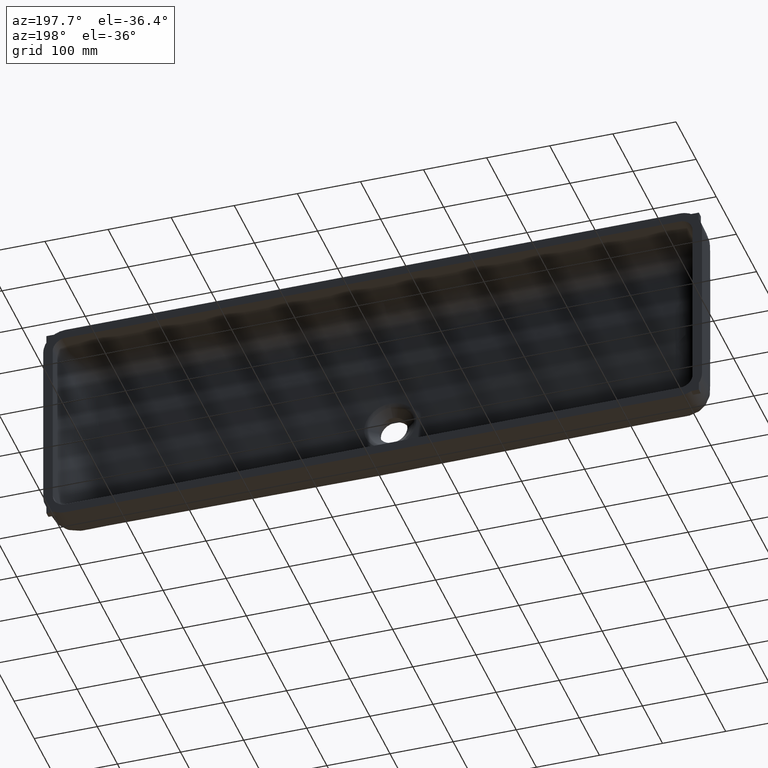
[diagram: clean part render]
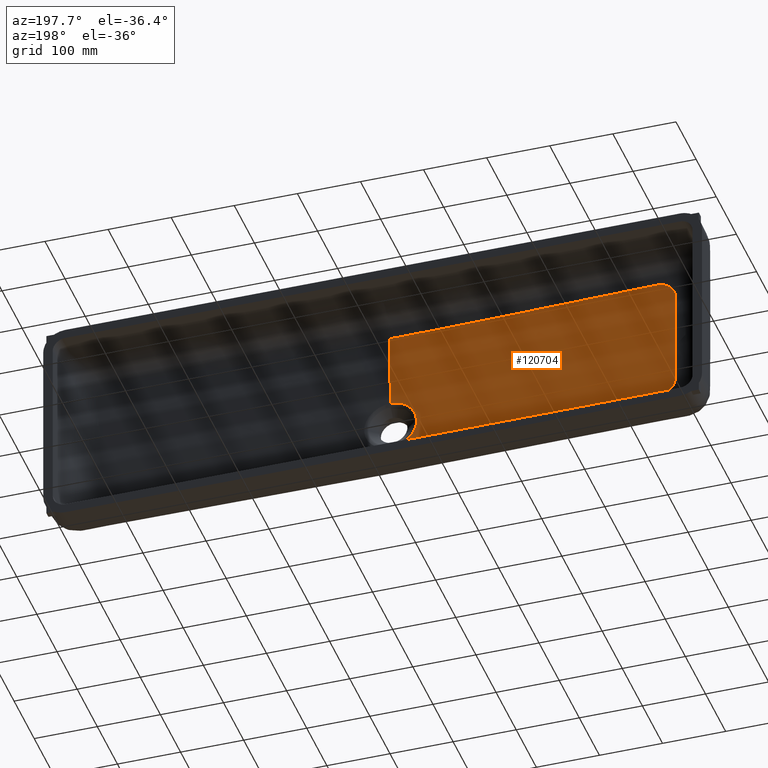
[diagram: same view with one face highlighted and labeled with its STEP entity id]
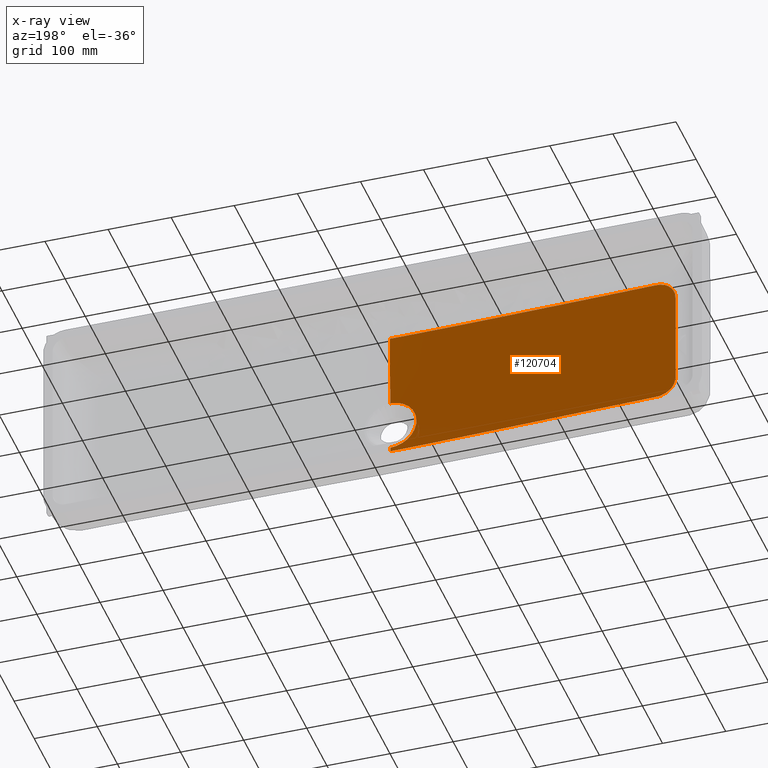
[diagram: x-ray of the same camera — body ghosted, the highlighted face saturated]
A machine part, auxiliary view. The second image highlights one B-rep face of the part: STEP entity #120704.
The next image is the same camera in x-ray: the body ghosted, the highlighted face saturated — about 0% of this face is hidden behind the body in this view.
In plain terms, the highlighted face is a freeform B-spline surface patch.
Its self-contained STEP definition (entity closure, byte-faithful):
#179 = CARTESIAN_POINT ( 'NONE',  ( 176.2024207338379500, 35.17482114246643500, 181.5264726593846100 ) ) ;
#963 = CARTESIAN_POINT ( 'NONE',  ( 164.5227834139117000, 35.47396408394478600, 183.2011361250598900 ) ) ;
#1739 = CARTESIAN_POINT ( 'NONE',  ( 149.8838825729335400, 35.82901819117439100, 194.0752245794039100 ) ) ;
#1866 = VERTEX_POINT ( 'NONE', #233815 ) ;
#2313 = CARTESIAN_POINT ( 'NONE',  ( 584.7628247678693500, 25.09141385087169600, 191.1164192531211100 ) ) ;
#2518 = CARTESIAN_POINT ( 'NONE',  ( 144.3858029873997600, 35.94624319658133500, 210.7559810717443400 ) ) ;
#3095 = CARTESIAN_POINT ( 'NONE',  ( 591.7522578783144800, 25.09141385088687000, 270.9398561180673800 ) ) ;
#3300 = CARTESIAN_POINT ( 'NONE',  ( 144.3620805054926800, 35.93721898306692000, 224.0639104135716800 ) ) ;
#4078 = CARTESIAN_POINT ( 'NONE',  ( 144.3604081195817600, 36.17001045739785100, 320.7265992561612500 ) ) ;
#4664 = CARTESIAN_POINT ( 'NONE',  ( -13.72413734284847700, 40.07586596130173000, -383.7240317683529700 ) ) ;
#4866 = CARTESIAN_POINT ( 'NONE',  ( 144.3593102158504300, 36.35749783869176400, 352.1369760297309900 ) ) ;
#5652 = CARTESIAN_POINT ( 'NONE',  ( 144.3738063945454500, 36.41973568150088200, 361.0677908512569200 ) ) ;
#6429 = CARTESIAN_POINT ( 'NONE',  ( 149.8807601732927700, 36.41178927021127300, 377.9155279742507800 ) ) ;
#6860 = CARTESIAN_POINT ( 'NONE',  ( 599.9999999999888600, 25.09141385091136600, 271.4909540696872300 ) ) ;
#7208 = CARTESIAN_POINT ( 'NONE',  ( 166.5849873833639700, 36.09877200873621200, 389.5396467287873700 ) ) ;
#7995 = CARTESIAN_POINT ( 'NONE',  ( 178.9293651524734200, 35.80553491580957400, 390.5678869772426700 ) ) ;
#8017 = VERTEX_POINT ( 'NONE', #6860 ) ;
#8783 = CARTESIAN_POINT ( 'NONE',  ( 224.1936735173692900, 34.70589829466395300, 390.5351423045095800 ) ) ;
#9571 = CARTESIAN_POINT ( 'NONE',  ( 306.0367402568567200, 32.77548315398624400, 390.5350279089851700 ) ) ;
#10353 = CARTESIAN_POINT ( 'NONE',  ( 368.1443505445549800, 31.38932625495923600, 390.5349879353515800 ) ) ;
#10939 = CARTESIAN_POINT ( 'NONE',  ( 600.0000001368580300, 25.27360374821627100, 181.5514945624263100 ) ) ;
#10999 = VERTEX_POINT ( 'NONE', #63508 ) ;
#11141 = CARTESIAN_POINT ( 'NONE',  ( 432.4241675808659700, 30.08064658210627200, 390.5322515717650200 ) ) ;
#11731 = CARTESIAN_POINT ( 'NONE',  ( 566.8307485983517600, 25.54126204137188700, 181.5528464619535800 ) ) ;
#11938 = CARTESIAN_POINT ( 'NONE',  ( 527.9380004786353300, 28.61193222349244900, 390.5355148227095000 ) ) ;
#12517 = CARTESIAN_POINT ( 'NONE',  ( 524.7622565993469800, 26.34812764394451200, 181.5516476848054300 ) ) ;
#13301 = CARTESIAN_POINT ( 'NONE',  ( 481.2749890947519000, 27.36261973391546900, 181.5525575936573300 ) ) ;
#14093 = CARTESIAN_POINT ( 'NONE',  ( 395.3594583264710400, 29.51168451655617300, 181.5525376915952100 ) ) ;
#16909 = CARTESIAN_POINT ( 'NONE',  ( 316.2649389037162600, 31.54229469099503200, 181.5519542143316300 ) ) ;
#17691 = CARTESIAN_POINT ( 'NONE',  ( 205.1853664554114100, 34.42106752351602200, 181.5508991228063600 ) ) ;
#18470 = CARTESIAN_POINT ( 'NONE',  ( 174.7594168339104500, 35.21229490116751000, 181.5497042412158100 ) ) ;
#19253 = CARTESIAN_POINT ( 'NONE',  ( 162.6788759146670900, 35.52001382945513800, 183.9095051765839900 ) ) ;
#20029 = CARTESIAN_POINT ( 'NONE',  ( 147.7238880241057800, 35.87831900573070200, 197.7108324307855300 ) ) ;
#20606 = CARTESIAN_POINT ( 'NONE',  ( 570.8474755309447300, 25.09141385087717800, 200.0879342295937100 ) ) ;
#20809 = CARTESIAN_POINT ( 'NONE',  ( 144.3521439597319300, 35.94554479357797300, 212.2423173956641400 ) ) ;
#21388 = CARTESIAN_POINT ( 'NONE',  ( 599.9999999999888600, 25.09141385091136600, 271.4909540696872300 ) ) ;
#21588 = CARTESIAN_POINT ( 'NONE',  ( 144.3643057883575700, 35.93609832581429200, 228.9481687952783800 ) ) ;
#22170 = CARTESIAN_POINT ( 'NONE',  ( 637.9999999999998900, 24.99999999999998200, 230.0000000000001100 ) ) ;
#22370 = CARTESIAN_POINT ( 'NONE',  ( 144.3597689349294900, 36.24108161381967400, 333.7314523931333400 ) ) ;
#22393 = VERTEX_POINT ( 'NONE', #122944 ) ;
#22957 = CARTESIAN_POINT ( 'NONE',  ( 599.9999472127524300, 40.07586596130173000, -383.7240845556007100 ) ) ;
#23159 = CARTESIAN_POINT ( 'NONE',  ( 144.3666017054352200, 36.38665213094045500, 356.3929282276017700 ) ) ;
#23942 = CARTESIAN_POINT ( 'NONE',  ( 144.5882254217838700, 36.43908077229078700, 364.4439632965092000 ) ) ;
#24714 = CARTESIAN_POINT ( 'NONE',  ( 152.0415468321671700, 36.38040851571513900, 380.6165423902784300 ) ) ;
#25487 = CARTESIAN_POINT ( 'NONE',  ( 169.6310935944903200, 36.02970827301287900, 390.1693335333761800 ) ) ;
#26269 = CARTESIAN_POINT ( 'NONE',  ( 181.0267931794197400, 35.75386772237664000, 390.5289432242980200 ) ) ;
#27066 = CARTESIAN_POINT ( 'NONE',  ( 240.2231755307384200, 34.32119994492298800, 390.5350387549036100 ) ) ;
#27846 = CARTESIAN_POINT ( 'NONE',  ( 315.5042910529034000, 32.55887662798325300, 390.5350065439470800 ) ) ;
#28630 = CARTESIAN_POINT ( 'NONE',  ( 378.0997492836097000, 31.17671831994382000, 390.5350540547096900 ) ) ;
#29214 = CARTESIAN_POINT ( 'NONE',  ( 598.3347206300720700, 25.27360375341639900, 181.5514943967702100 ) ) ;
#29414 = CARTESIAN_POINT ( 'NONE',  ( 444.4032265945500600, 29.85894625753087100, 390.5339602060861400 ) ) ;
#29997 = CARTESIAN_POINT ( 'NONE',  ( 559.1136921326053700, 25.66465820219164600, 181.5523083982464800 ) ) ;
#30197 = CARTESIAN_POINT ( 'NONE',  ( 538.7821929226649900, 28.50305098916029700, 390.5317727285462300 ) ) ;
#30776 = CARTESIAN_POINT ( 'NONE',  ( 519.7667222595162000, 26.45910155208459400, 181.5537173660781900 ) ) ;
#31564 = CARTESIAN_POINT ( 'NONE',  ( 469.0977435494332900, 27.65948673611513400, 181.5537564070672800 ) ) ;
#32345 = CARTESIAN_POINT ( 'NONE',  ( 385.4977266505073900, 29.76334741490188000, 181.5516779035254400 ) ) ;
#35163 = CARTESIAN_POINT ( 'NONE',  ( 299.5155626787237100, 31.97498363092420700, 181.5516155541122000 ) ) ;
#35946 = CARTESIAN_POINT ( 'NONE',  ( 196.5028839826208900, 34.64677840758197600, 181.5481660046018200 ) ) ;
#36721 = CARTESIAN_POINT ( 'NONE',  ( 173.7250750174125600, 35.23914029492429000, 181.5720616673436900 ) ) ;
#37496 = CARTESIAN_POINT ( 'NONE',  ( 160.3399288747701500, 35.57798292568011100, 184.9962424486969900 ) ) ;
#38274 = CARTESIAN_POINT ( 'NONE',  ( 146.4450702666939900, 35.90673329716665300, 200.5139673883655300 ) ) ;
#38845 = CARTESIAN_POINT ( 'NONE',  ( 561.5023621539818400, 25.09141385087956900, 213.8055819237233900 ) ) ;
#39047 = CARTESIAN_POINT ( 'NONE',  ( 144.3313266086212300, 35.94463874297851900, 213.7270396357857900 ) ) ;
#39827 = CARTESIAN_POINT ( 'NONE',  ( 144.3630196244012300, 35.93794513449722000, 238.7141340728115300 ) ) ;
#40415 = CARTESIAN_POINT ( 'NONE',  ( 637.9999999999997700, 24.99999999999997200, 268.0000000000001100 ) ) ;
#40614 = CARTESIAN_POINT ( 'NONE',  ( 144.3594373445196800, 36.30865532470194500, 344.7379891969777100 ) ) ;
#41400 = CARTESIAN_POINT ( 'NONE',  ( 144.3593072382751900, 36.39445140261099000, 357.4745018140378100 ) ) ;
#42180 = CARTESIAN_POINT ( 'NONE',  ( 145.0974116474945700, 36.44684257965784700, 367.1837213324736800 ) ) ;
#42959 = CARTESIAN_POINT ( 'NONE',  ( 154.5410197172212700, 36.33927636621060500, 383.0885556327968400 ) ) ;
#43738 = CARTESIAN_POINT ( 'NONE',  ( 170.6389671879995500, 36.00620141404619500, 390.3030364107140100 ) ) ;
#44522 = CARTESIAN_POINT ( 'NONE',  ( 184.5032626959721000, 35.66884417058759700, 390.5231334392418000 ) ) ;
#45313 = CARTESIAN_POINT ( 'NONE',  ( 255.9745452790734200, 33.94594088434787700, 390.5350040958797400 ) ) ;
#46091 = CARTESIAN_POINT ( 'NONE',  ( 322.4942033145649100, 32.39994812375299200, 390.5350369373521700 ) ) ;
#46868 = CARTESIAN_POINT ( 'NONE',  ( 383.9186820543877200, 31.05382482840771300, 390.5347532142694100 ) ) ;
#47450 = CARTESIAN_POINT ( 'NONE',  ( 596.6344249214331500, 25.27581543322198200, 181.5524908709535600 ) ) ;
#47651 = CARTESIAN_POINT ( 'NONE',  ( 453.0011632681407100, 29.70456712932142900, 390.5351151525825300 ) ) ;
#48237 = CARTESIAN_POINT ( 'NONE',  ( 553.8624798939123400, 25.75649817175873900, 181.5514380374127100 ) ) ;
#48440 = CARTESIAN_POINT ( 'NONE',  ( 552.4676289021814500, 28.38574525998331700, 390.5311374682053200 ) ) ;
#49020 = CARTESIAN_POINT ( 'NONE',  ( 514.3308703008931400, 26.58200477978269700, 181.5534276188294300 ) ) ;
#49812 = CARTESIAN_POINT ( 'NONE',  ( 453.1475879950850800, 28.05424206457668400, 181.5515656607161100 ) ) ;
#50593 = CARTESIAN_POINT ( 'NONE',  ( 380.4446551701556700, 29.89250265222445800, 181.5514397500707300 ) ) ;
#53411 = CARTESIAN_POINT ( 'NONE',  ( 282.5933418050169100, 32.41275759621208200, 181.5517156771730900 ) ) ;
#54188 = CARTESIAN_POINT ( 'NONE',  ( 187.8119909478338300, 34.87273562186200600, 181.5588216411655700 ) ) ;
#54964 = CARTESIAN_POINT ( 'NONE',  ( 172.0615838812879000, 35.28222171346917000, 181.6403082458198800 ) ) ;
#55735 = CARTESIAN_POINT ( 'NONE',  ( 157.1684064602321800, 35.65557644696251300, 186.9349118144162100 ) ) ;
#56509 = CARTESIAN_POINT ( 'NONE',  ( 145.4780523309902700, 35.92736043813338400, 203.3918479569638900 ) ) ;
#57084 = CARTESIAN_POINT ( 'NONE',  ( 558.2623401866338800, 25.09141385088444000, 229.6728471827547400 ) ) ;
#57285 = CARTESIAN_POINT ( 'NONE',  ( 144.3693663956650800, 35.94231994181752300, 215.2104786854547200 ) ) ;
#58063 = CARTESIAN_POINT ( 'NONE',  ( 144.3604798145617600, 35.94796641230880100, 250.5646314384273400 ) ) ;
#58653 = CARTESIAN_POINT ( 'NONE',  ( 599.9999999999998900, 24.99999999999997200, 268.0000000000001100 ) ) ;
#58853 = CARTESIAN_POINT ( 'NONE',  ( 144.3602869555425300, 36.33956366186469500, 349.4639615792170300 ) ) ;
#59644 = CARTESIAN_POINT ( 'NONE',  ( 144.3536152212265100, 36.39605508633580700, 357.6813009191538400 ) ) ;
#60421 = CARTESIAN_POINT ( 'NONE',  ( 145.5209610776443900, 36.44855164755190200, 368.8040732942178600 ) ) ;
#61199 = CARTESIAN_POINT ( 'NONE',  ( 159.4219421801592200, 36.24955688408627500, 386.6745660573208700 ) ) ;
#61979 = CARTESIAN_POINT ( 'NONE',  ( 171.9968500259850800, 35.97407044773189700, 390.4310131099404700 ) ) ;
#62767 = CARTESIAN_POINT ( 'NONE',  ( 188.6579500638167100, 35.56758005701998100, 390.5392394020364600 ) ) ;
#63508 = CARTESIAN_POINT ( 'NONE',  ( 600.0000001368580300, 25.27360374821627100, 181.5514945624263100 ) ) ;
#63548 = CARTESIAN_POINT ( 'NONE',  ( 271.4128484666722400, 33.58111254578405200, 390.5351199493489400 ) ) ;
#64318 = CARTESIAN_POINT ( 'NONE',  ( 333.9070044015294300, 32.14246351001722200, 390.5350060873335600 ) ) ;
#65107 = CARTESIAN_POINT ( 'NONE',  ( 391.4880302390740200, 30.89552658955067700, 390.5339930371083600 ) ) ;
#65687 = CARTESIAN_POINT ( 'NONE',  ( 591.3221682058969000, 25.29290332776588800, 181.5511596784748500 ) ) ;
#65888 = CARTESIAN_POINT ( 'NONE',  ( 466.5881156251383000, 29.46982372128766100, 390.5331086122930600 ) ) ;
#66472 = CARTESIAN_POINT ( 'NONE',  ( 547.9841026466151600, 25.86596374974735500, 181.5520786451867500 ) ) ;
#66674 = CARTESIAN_POINT ( 'NONE',  ( 571.3364225163758200, 28.27221586664336400, 390.5347844136795700 ) ) ;
#67255 = CARTESIAN_POINT ( 'NONE',  ( 508.3840899484384300, 26.71865803874890600, 181.5514036881564600 ) ) ;
#68046 = CARTESIAN_POINT ( 'NONE',  ( 447.4147589401154600, 28.19706696520725900, 181.5517102142737800 ) ) ;
#68823 = CARTESIAN_POINT ( 'NONE',  ( 376.6038570198214800, 29.99075424008716700, 181.5514198063478900 ) ) ;
#70862 = CARTESIAN_POINT ( 'NONE',  ( 365.0138414117309900, 30.28742830539377100, 181.5518510430144400 ) ) ;
#71634 = CARTESIAN_POINT ( 'NONE',  ( 265.5404659571900100, 32.85445054513606800, 181.5516893630212400 ) ) ;
#72200 = DIRECTION ( 'NONE',  ( -9.165702807759771400E-008, -0.02617694872021050400, 0.9996573249647555700 ) ) ;
#72410 = CARTESIAN_POINT ( 'NONE',  ( 181.2819081964656800, 35.04267297867823300, 181.5295158248822800 ) ) ;
#73183 = CARTESIAN_POINT ( 'NONE',  ( 170.7261922232722800, 35.31660152296016300, 181.7661805368252900 ) ) ;
#73961 = CARTESIAN_POINT ( 'NONE',  ( 154.8433032229845600, 35.71168477558219900, 188.7595954133728900 ) ) ;
#74529 = CARTESIAN_POINT ( 'NONE',  ( 600.0000002286285500, 25.09141385106158900, 188.5090459245770700 ) ) ;
#74734 = CARTESIAN_POINT ( 'NONE',  ( 144.7945473303618100, 35.94101269365049200, 206.3098930967443600 ) ) ;
#75311 = CARTESIAN_POINT ( 'NONE',  ( 561.1163365213602700, 25.09141385088054900, 245.2371824138892000 ) ) ;
#75514 = CARTESIAN_POINT ( 'NONE',  ( 144.3661889719691400, 35.94081690632015800, 217.1845879403261700 ) ) ;
#76294 = CARTESIAN_POINT ( 'NONE',  ( 144.3604241567751400, 35.96623208586264300, 262.5571138232127200 ) ) ;
#76882 = CARTESIAN_POINT ( 'NONE',  ( 561.9999999999996600, 24.99999999999997200, 268.0000000000000000 ) ) ;
#77084 = CARTESIAN_POINT ( 'NONE',  ( 144.3605187488281800, 36.34513374937322500, 350.3005945536497700 ) ) ;
#77872 = CARTESIAN_POINT ( 'NONE',  ( 144.3441906446831000, 36.39929199385543500, 358.1051964818756800 ) ) ;
#78648 = CARTESIAN_POINT ( 'NONE',  ( 146.2026257342155000, 36.44790201931544300, 370.9364099486634200 ) ) ;
#79426 = CARTESIAN_POINT ( 'NONE',  ( 162.8699611828450000, 36.17862212576180500, 388.2537926623040800 ) ) ;
#80209 = CARTESIAN_POINT ( 'NONE',  ( 174.0592996652880200, 35.92442568931519300, 390.5296814188852200 ) ) ;
#80998 = CARTESIAN_POINT ( 'NONE',  ( 192.8066929323120500, 35.46640969140202800, 390.5356756767217800 ) ) ;
#81781 = CARTESIAN_POINT ( 'NONE',  ( 283.9983696646633600, 33.28625686306105500, 390.5350857158034000 ) ) ;
#82559 = CARTESIAN_POINT ( 'NONE',  ( 342.7727880512984500, 31.94475465457289300, 390.5350344045096400 ) ) ;
#83339 = CARTESIAN_POINT ( 'NONE',  ( 402.3886193765385400, 30.67162217960502000, 390.5338919371926100 ) ) ;
#83919 = CARTESIAN_POINT ( 'NONE',  ( 585.6034797442276800, 25.32741272192867000, 181.5526215827686700 ) ) ;
#84122 = CARTESIAN_POINT ( 'NONE',  ( 481.6058144990066700, 29.22729407001871100, 390.5343221946503700 ) ) ;
#84705 = CARTESIAN_POINT ( 'NONE',  ( 541.3248434218124900, 25.99710037350490300, 181.5517453165717000 ) ) ;
#84907 = CARTESIAN_POINT ( 'NONE',  ( 588.8792600595676300, 28.21606228406059100, 390.5348337664862000 ) ) ;
#85491 = CARTESIAN_POINT ( 'NONE',  ( 497.3300065501539400, 26.97721993209658800, 181.5525834825791100 ) ) ;
#86286 = CARTESIAN_POINT ( 'NONE',  ( 439.5444954016643900, 28.39385367016241400, 181.5522918442463800 ) ) ;
#88001 = VECTOR ( 'NONE', #72200, 1000.000000000000100 ) ;
#89103 = CARTESIAN_POINT ( 'NONE',  ( 340.9461627443264400, 30.90610070766403800, 181.5513998475997300 ) ) ;
#89874 = CARTESIAN_POINT ( 'NONE',  ( 248.3911749384803300, 33.29910839355063200, 181.5516185934444300 ) ) ;
#90656 = CARTESIAN_POINT ( 'NONE',  ( 179.1023110040495100, 35.09943226834764800, 181.5090887019050300 ) ) ;
#91432 = CARTESIAN_POINT ( 'NONE',  ( 169.6925645484931500, 35.34308624678801200, 181.9079111677445200 ) ) ;
#92208 = CARTESIAN_POINT ( 'NONE',  ( 153.5703338649389300, 35.74213350309590000, 189.9144489435669500 ) ) ;
#92990 = CARTESIAN_POINT ( 'NONE',  ( 144.5324177408113500, 35.94532158297255400, 208.2787434266155600 ) ) ;
#93254 =( BOUNDED_SURFACE ( )  B_SPLINE_SURFACE ( 2, 1, ( 
 ( #112566, #184860 ),
 ( #219808, #130846 ),
 ( #22170, #149113 ),
 ( #40415, #167375 ),
 ( #58653, #185648 ),
 ( #76882, #203911 ),
 ( #95127, #222161 ),
 ( #113355, #4664 ),
 ( #131635, #22957 ) ),
 .UNSPECIFIED., .T., .F., .F. ) 
 B_SPLINE_SURFACE_WITH_KNOTS ( ( 3, 2, 2, 2, 3 ),
 ( 2, 2 ),
 ( 0.0000000000000000000, 964.0355376855017100, 1928.071075371004100, 2892.106613056505900, 3856.142150742006800 ),
 ( 0.0000000000000000000, 575.9214384548213300 ),
 .UNSPECIFIED. ) 
 GEOMETRIC_REPRESENTATION_ITEM ( )  RATIONAL_B_SPLINE_SURFACE ( (
 ( 1.000000000000000000, 1.000000000000000000),
 ( 0.7071067811865474600, 0.7071067811865474600),
 ( 1.000000000000000000, 1.000000000000000000),
 ( 0.7071067811865474600, 0.7071067811865474600),
 ( 1.000000000000000000, 1.000000000000000000),
 ( 0.7071067811865474600, 0.7071067811865474600),
 ( 1.000000000000000000, 1.000000000000000000),
 ( 0.7071067811865474600, 0.7071067811865474600),
 ( 1.000000000000000000, 1.000000000000000000) ) ) 
 REPRESENTATION_ITEM ( '' )  SURFACE ( )  );
#93564 = CARTESIAN_POINT ( 'NONE',  ( 570.0879043576484300, 25.09141385087831800, 259.1525423342558800 ) ) ;
#93766 = CARTESIAN_POINT ( 'NONE',  ( 144.3579373870007000, 35.93910887020484800, 220.1383817043989100 ) ) ;
#94335 = FACE_OUTER_BOUND ( 'NONE', #235144, .T. ) ;
#94543 = CARTESIAN_POINT ( 'NONE',  ( 144.3603096082368300, 36.01438011609866400, 282.8631947510888300 ) ) ;
#95127 = CARTESIAN_POINT ( 'NONE',  ( 561.9999999999998900, 24.99999999999998200, 230.0000000000000000 ) ) ;
#95327 = CARTESIAN_POINT ( 'NONE',  ( 144.3605511486275600, 36.34710573964874000, 350.5953470029600700 ) ) ;
#96113 = CARTESIAN_POINT ( 'NONE',  ( 144.3413834961395100, 36.40437555226471000, 358.8109135236091400 ) ) ;
#96890 = CARTESIAN_POINT ( 'NONE',  ( 147.5359631655447300, 36.43880926446176000, 374.0192161113828900 ) ) ;
#97669 = CARTESIAN_POINT ( 'NONE',  ( 164.0648818124290100, 36.15331382688440000, 388.7125656497748900 ) ) ;
#98448 = CARTESIAN_POINT ( 'NONE',  ( 176.1398937057465400, 35.87390952310994400, 390.5781779349058000 ) ) ;
#99236 = CARTESIAN_POINT ( 'NONE',  ( 199.6957184765765000, 35.29874075704933000, 390.5341696392004000 ) ) ;
#100016 = CARTESIAN_POINT ( 'NONE',  ( 291.4383329225017900, 33.11298868683628200, 390.5350426134535800 ) ) ;
#100797 = CARTESIAN_POINT ( 'NONE',  ( 349.2936161035807500, 31.80041971481832500, 390.5349990593082300 ) ) ;
#101584 = CARTESIAN_POINT ( 'NONE',  ( 412.8286548200384200, 30.46175096711462500, 390.5350289391262800 ) ) ;
#102169 = CARTESIAN_POINT ( 'NONE',  ( 579.3077195770914600, 25.38335375956424800, 181.5525406630202700 ) ) ;
#102372 = CARTESIAN_POINT ( 'NONE',  ( 495.4671497331625600, 29.02039179168536300, 390.5340428902035800 ) ) ;
#102949 = CARTESIAN_POINT ( 'NONE',  ( 533.6904495106208500, 26.15501080592067100, 181.5513328855001000 ) ) ;
#103153 = CARTESIAN_POINT ( 'NONE',  ( 599.9999999999998900, 28.20869239139523500, 390.5350171022338400 ) ) ;
#103739 = CARTESIAN_POINT ( 'NONE',  ( 489.5790563423020100, 27.16245775859685100, 181.5514322378255100 ) ) ;
#104525 = CARTESIAN_POINT ( 'NONE',  ( 422.9492023017691600, 28.81122535673822700, 181.5537450057335900 ) ) ;
#107329 = CARTESIAN_POINT ( 'NONE',  ( 332.7702803516082200, 31.11665321305402500, 181.5517371181810800 ) ) ;
#108109 = CARTESIAN_POINT ( 'NONE',  ( 231.1563560924283300, 33.74639279085555200, 181.5511638601595900 ) ) ;
#108887 = CARTESIAN_POINT ( 'NONE',  ( 176.9267185401513100, 35.15600349374746300, 181.5178672803537000 ) ) ;
#109664 = CARTESIAN_POINT ( 'NONE',  ( 166.4976037307475000, 35.42432751816432600, 182.5700254793689800 ) ) ;
#109889 = EDGE_CURVE ( 'NONE', #10999, #22393, #224903, .T. ) ;
#110229 = CARTESIAN_POINT ( 'NONE',  ( 597.5507879839798300, 25.09141385085068900, 188.5089563614401700 ) ) ;
#110436 = CARTESIAN_POINT ( 'NONE',  ( 151.2132214286830000, 35.79806135843685400, 192.3330162972000900 ) ) ;
#111011 = CARTESIAN_POINT ( 'NONE',  ( 592.4230541781321300, 25.09141385089394700, 188.9641739471760200 ) ) ;
#111214 = CARTESIAN_POINT ( 'NONE',  ( 144.4254130161897400, 35.94633031211913700, 209.7649148096755600 ) ) ;
#111788 = CARTESIAN_POINT ( 'NONE',  ( 583.8055598865194000, 25.09141385087516000, 268.4976949041536600 ) ) ;
#111989 = CARTESIAN_POINT ( 'NONE',  ( 144.3614525876599000, 35.93759712093417800, 223.0840013789907900 ) ) ;
#112566 = CARTESIAN_POINT ( 'NONE',  ( 599.9999999999998900, 25.00000000000000000, 192.0000000000000000 ) ) ;
#112769 = CARTESIAN_POINT ( 'NONE',  ( 144.3603974395588800, 36.10736538924389500, 307.8925449945107900 ) ) ;
#113355 = CARTESIAN_POINT ( 'NONE',  ( 561.9999999999998900, 25.00000000000000400, 192.0000000000000000 ) ) ;
#113558 = CARTESIAN_POINT ( 'NONE',  ( 144.3603004925564100, 36.34931647655761800, 350.9239710003448600 ) ) ;
#113659 =( BOUNDED_CURVE ( )  B_SPLINE_CURVE ( 1, ( #118932, #193571 ),
 .UNSPECIFIED., .F., .F. ) 
 B_SPLINE_CURVE_WITH_KNOTS ( ( 2, 2 ),
 ( 0.0000000000000000000, 1.000000000000000000 ),
 .UNSPECIFIED. ) 
 CURVE ( )  GEOMETRIC_REPRESENTATION_ITEM ( )  RATIONAL_B_SPLINE_CURVE ( ( 0.9999999664502322600, 0.9999999664502322600 ) ) 
 REPRESENTATION_ITEM ( '' )  );
#114347 = CARTESIAN_POINT ( 'NONE',  ( 144.3505446805472400, 36.41019181570603500, 359.6572351693818100 ) ) ;
#115127 = CARTESIAN_POINT ( 'NONE',  ( 149.2368456301629500, 36.42010827615707300, 376.9697291808051900 ) ) ;
#115902 = CARTESIAN_POINT ( 'NONE',  ( 164.9899292940627600, 36.13343289698526900, 389.0329260602683200 ) ) ;
#116470 = EDGE_CURVE ( 'NONE', #22393, #8017, #155245, .T. ) ;
#116682 = CARTESIAN_POINT ( 'NONE',  ( 178.2295656458789500, 35.82278176179874400, 390.5810822433127200 ) ) ;
#117473 = CARTESIAN_POINT ( 'NONE',  ( 213.3713903746178500, 34.96707551640938000, 390.5350571213190800 ) ) ;
#118257 = CARTESIAN_POINT ( 'NONE',  ( 301.2173504211645500, 32.88645569812755600, 390.5350393747199300 ) ) ;
#118932 = CARTESIAN_POINT ( 'NONE',  ( 599.9999999999888600, 25.09141385091136600, 271.4909540696872300 ) ) ;
#119046 = CARTESIAN_POINT ( 'NONE',  ( 359.9137368121228100, 31.56752524721055100, 390.5350501915913200 ) ) ;
#119832 = CARTESIAN_POINT ( 'NONE',  ( 426.1355093248546400, 30.20058337925989600, 390.5337109898107400 ) ) ;
#120421 = CARTESIAN_POINT ( 'NONE',  ( 572.1983691906319800, 25.46643286615470500, 181.5515806202612300 ) ) ;
#120624 = CARTESIAN_POINT ( 'NONE',  ( 516.5568092448872900, 28.73921687635837700, 390.5338245977200700 ) ) ;
#120704 = ADVANCED_FACE ( 'NONE', ( #94335 ), #93254, .T. ) ;
#121207 = CARTESIAN_POINT ( 'NONE',  ( 526.3411995999366600, 26.31348184578056900, 181.5515115791492600 ) ) ;
#121996 = CARTESIAN_POINT ( 'NONE',  ( 485.5017682571566400, 27.26050741163678000, 181.5517891742174500 ) ) ;
#122788 = CARTESIAN_POINT ( 'NONE',  ( 400.1450944698106000, 29.38980939744912000, 181.5530319677135100 ) ) ;
#122944 = CARTESIAN_POINT ( 'NONE',  ( 600.0000002286285500, 25.09141385106158900, 188.5090459245770700 ) ) ;
#124167 = EDGE_CURVE ( 'NONE', #10999, #1866, #220448, .T. ) ;
#125598 = CARTESIAN_POINT ( 'NONE',  ( 321.7950165834296300, 31.39958547012531300, 181.5521412378004400 ) ) ;
#126376 = CARTESIAN_POINT ( 'NONE',  ( 213.8581333526962600, 34.19568002507463000, 181.5505036768725800 ) ) ;
#127153 = CARTESIAN_POINT ( 'NONE',  ( 175.1164198626184400, 35.20302420959028900, 181.5437656694845100 ) ) ;
#127928 = CARTESIAN_POINT ( 'NONE',  ( 163.9012438168037700, 35.48952281261513500, 183.4247718895729200 ) ) ;
#128705 = CARTESIAN_POINT ( 'NONE',  ( 148.2224474231388200, 35.86704237760523000, 196.7893600539164800 ) ) ;
#129282 = CARTESIAN_POINT ( 'NONE',  ( 577.3904324372451800, 25.09141385088221900, 194.8770721002621800 ) ) ;
#129486 = CARTESIAN_POINT ( 'NONE',  ( 144.3735931678080800, 35.94602204341956800, 211.2515842012915400 ) ) ;
#130063 = CARTESIAN_POINT ( 'NONE',  ( 597.2235825712415400, 25.09141385086261900, 271.4912035699369400 ) ) ;
#130264 = CARTESIAN_POINT ( 'NONE',  ( 144.3636624714546600, 35.93634124682638700, 226.9993567054516500 ) ) ;
#130846 = CARTESIAN_POINT ( 'NONE',  ( 1213.724031768353400, 40.07586596130173000, -383.7241373428483400 ) ) ;
#131046 = CARTESIAN_POINT ( 'NONE',  ( 144.3604255066293500, 36.19256092262003200, 325.0398484572506300 ) ) ;
#131635 = CARTESIAN_POINT ( 'NONE',  ( 599.9999999999998900, 25.00000000000000000, 192.0000000000000000 ) ) ;
#131838 = CARTESIAN_POINT ( 'NONE',  ( 144.3623847799431700, 36.37092500963780100, 354.1181943581883600 ) ) ;
#132583 = ORIENTED_EDGE ( 'NONE', *, *, #190621, .F. ) ;
#132620 = CARTESIAN_POINT ( 'NONE',  ( 144.4110454632150900, 36.42699811010316300, 362.1959932280028600 ) ) ;
#133405 = CARTESIAN_POINT ( 'NONE',  ( 151.2831115195340900, 36.39193938999029900, 379.7389358831433700 ) ) ;
#134183 = CARTESIAN_POINT ( 'NONE',  ( 167.9519635678406400, 36.06833715695652400, 389.8860246477537400 ) ) ;
#134969 = CARTESIAN_POINT ( 'NONE',  ( 180.3280716713978200, 35.77106898170335100, 390.5411086581045200 ) ) ;
#135764 = CARTESIAN_POINT ( 'NONE',  ( 229.5654528836157600, 34.57667715029292300, 390.5350621595200700 ) ) ;
#136550 = CARTESIAN_POINT ( 'NONE',  ( 313.1511836931096600, 32.61259468950013500, 390.5350025834989700 ) ) ;
#137337 = CARTESIAN_POINT ( 'NONE',  ( 372.1735150000011500, 31.30282961191525400, 390.5350134184594700 ) ) ;
#138120 = CARTESIAN_POINT ( 'NONE',  ( 441.4583471914829700, 29.91285689953039300, 390.5332461686060700 ) ) ;
#138707 = CARTESIAN_POINT ( 'NONE',  ( 563.9313716791336900, 25.58522769717870900, 181.5513130834140200 ) ) ;
#138912 = CARTESIAN_POINT ( 'NONE',  ( 531.6165048908083000, 28.57334507112793200, 390.5341492725534600 ) ) ;
#139485 = CARTESIAN_POINT ( 'NONE',  ( 521.4758638428430700, 26.42091561584950900, 181.5530013471189400 ) ) ;
#140271 = CARTESIAN_POINT ( 'NONE',  ( 478.3344469994738700, 27.43402732029767300, 181.5531493185348800 ) ) ;
#141055 = CARTESIAN_POINT ( 'NONE',  ( 387.9873645290948000, 29.69977230197115100, 181.5518796064344300 ) ) ;
#143872 = CARTESIAN_POINT ( 'NONE',  ( 305.1260961569081500, 31.82997158293063200, 181.5514988530528600 ) ) ;
#144653 = CARTESIAN_POINT ( 'NONE',  ( 202.2924480294691100, 34.49626422243618900, 181.5500465680670700 ) ) ;
#145426 = CARTESIAN_POINT ( 'NONE',  ( 174.0649732400603700, 35.23032130504337500, 181.5637407073967900 ) ) ;
#146199 = CARTESIAN_POINT ( 'NONE',  ( 162.0826216776405900, 35.53483052582766500, 184.1693942625241500 ) ) ;
#146942 = ORIENTED_EDGE ( 'NONE', *, *, #124167, .T. ) ;
#146976 = CARTESIAN_POINT ( 'NONE',  ( 146.8353029483724300, 35.89816314148637100, 199.5725186501038300 ) ) ;
#147164 = ORIENTED_EDGE ( 'NONE', *, *, #116470, .F. ) ;
#147552 = CARTESIAN_POINT ( 'NONE',  ( 565.4627712968788300, 25.09141385087902200, 206.5028624957753300 ) ) ;
#147754 = CARTESIAN_POINT ( 'NONE',  ( 144.3432570166284000, 35.94527952341054800, 212.7374008330987500 ) ) ;
#148532 = CARTESIAN_POINT ( 'NONE',  ( 144.3646816497216600, 35.93639003402584800, 234.7956074146142700 ) ) ;
#149113 = CARTESIAN_POINT ( 'NONE',  ( 1213.724084555600700, 40.07586596130147400, 229.9999472127526000 ) ) ;
#149313 = CARTESIAN_POINT ( 'NONE',  ( 144.3592440948779900, 36.26705307963928200, 338.1110264043113000 ) ) ;
#150103 = CARTESIAN_POINT ( 'NONE',  ( 144.3668552840527200, 36.39115889885527400, 357.0345197333846800 ) ) ;
#150884 = CARTESIAN_POINT ( 'NONE',  ( 144.7517182890690900, 36.44319883440768100, 365.5487157596110100 ) ) ;
#151665 = CARTESIAN_POINT ( 'NONE',  ( 153.6711302013276000, 36.35406405276273000, 382.2916529538415500 ) ) ;
#152445 = CARTESIAN_POINT ( 'NONE',  ( 169.9652264690033700, 36.02195557116210300, 390.2182219698284500 ) ) ;
#153233 = CARTESIAN_POINT ( 'NONE',  ( 183.1161796554228500, 35.70267399431102000, 390.5168239054312400 ) ) ;
#154022 = CARTESIAN_POINT ( 'NONE',  ( 245.5066378029562200, 34.19500348744144700, 390.5350960389012600 ) ) ;
#154803 = CARTESIAN_POINT ( 'NONE',  ( 320.1752362035076700, 32.45256613251520900, 390.5350267796929400 ) ) ;
#155245 = B_SPLINE_CURVE_WITH_KNOTS ( 'NONE', 3,
 ( #74529, #110229, #111011, #2313, #129282, #20606, #147552, #38845, #165814, #57084, #184084, #75311, #202337, #93564, #220589, #111788, #3095, #130063, #21388 ),
 .UNSPECIFIED., .F., .F.,
 ( 4, 1, 1, 1, 1, 1, 1, 1, 1, 1, 1, 1, 1, 1, 1, 1, 4 ),
 ( 0.0000000000000000000, 0.05636987820613002800, 0.1180171092944912300, 0.1822733064327644600, 0.2458800153787784900, 0.3095689004160912000, 0.3740717935484372300, 0.4361016977776324100, 0.4999999987720582000, 0.5563698794336597900, 0.6180171105219983700, 0.6822733076602460800, 0.7458800166062334900, 0.8095689016435198000, 0.8740717947758404000, 0.9361016990050123900, 1.000000000000000000 ),
 .UNSPECIFIED. ) ;
#155588 = CARTESIAN_POINT ( 'NONE',  ( 380.0555707598090300, 31.13528684642531300, 390.5350319915451100 ) ) ;
#156373 = CARTESIAN_POINT ( 'NONE',  ( 450.1735367264893700, 29.75482310512848400, 390.5350433441342900 ) ) ;
#156958 = CARTESIAN_POINT ( 'NONE',  ( 557.4284426366006100, 25.69342963752617200, 181.5521739294058500 ) ) ;
#157160 = CARTESIAN_POINT ( 'NONE',  ( 542.2675071774581300, 28.47136799765545900, 390.5308628343453800 ) ) ;
#157742 = CARTESIAN_POINT ( 'NONE',  ( 516.1942283342101500, 26.53964613405118200, 181.5539302695083300 ) ) ;
#158532 = CARTESIAN_POINT ( 'NONE',  ( 462.3865459157028100, 27.82477522222117000, 181.5521924948629600 ) ) ;
#159313 = CARTESIAN_POINT ( 'NONE',  ( 381.7140726861117100, 29.86004675860538500, 181.5514853181586800 ) ) ;
#162137 = CARTESIAN_POINT ( 'NONE',  ( 288.2523307578805400, 32.26629559266355300, 181.5516680002079400 ) ) ;
#162916 = CARTESIAN_POINT ( 'NONE',  ( 193.6061296389374000, 34.72209959460238300, 181.5468143488809300 ) ) ;
#163686 = CARTESIAN_POINT ( 'NONE',  ( 172.7173809193408500, 35.26525942094714600, 181.6059123905842800 ) ) ;
#164468 = CARTESIAN_POINT ( 'NONE',  ( 159.2395700450418000, 35.60502093989487100, 185.6104211499779500 ) ) ;
#165239 = CARTESIAN_POINT ( 'NONE',  ( 145.7663054766193800, 35.92133766835728900, 202.4220938858955800 ) ) ;
#165814 = CARTESIAN_POINT ( 'NONE',  ( 559.0600291740140600, 25.09141385087602000, 221.7522241493638000 ) ) ;
#166016 = CARTESIAN_POINT ( 'NONE',  ( 144.3261061189474800, 35.94432042579765600, 214.2213662286022200 ) ) ;
#166789 = CARTESIAN_POINT ( 'NONE',  ( 144.3605046736082000, 35.94374332171594200, 246.5982069357903000 ) ) ;
#167375 = CARTESIAN_POINT ( 'NONE',  ( 1213.724137342848100, 40.07586596130119700, 843.7240317683534800 ) ) ;
#167573 = CARTESIAN_POINT ( 'NONE',  ( 144.3596712854093200, 36.32296358077839200, 346.9565793610696000 ) ) ;
#168364 = CARTESIAN_POINT ( 'NONE',  ( 144.3572844844466700, 36.39496462755685300, 357.5399913934841200 ) ) ;
#169141 = CARTESIAN_POINT ( 'NONE',  ( 145.2289001079971600, 36.44764955648247500, 367.7253590431478800 ) ) ;
#169927 = CARTESIAN_POINT ( 'NONE',  ( 157.3285358407096100, 36.28964326912656400, 385.3476123329269900 ) ) ;
#170711 = CARTESIAN_POINT ( 'NONE',  ( 170.9774201375726600, 35.99822835303239500, 390.3389669731425900 ) ) ;
#171496 = CARTESIAN_POINT ( 'NONE',  ( 187.2736735408067000, 35.60132446123908100, 390.5359803119582700 ) ) ;
#172288 = CARTESIAN_POINT ( 'NONE',  ( 261.1543023497634400, 33.82318758376015900, 390.5350169027854600 ) ) ;
#173066 = CARTESIAN_POINT ( 'NONE',  ( 329.3905695878717700, 32.24395933442958300, 390.5350107130618700 ) ) ;
#173850 = CARTESIAN_POINT ( 'NONE',  ( 385.8273942600258100, 31.01376472116235700, 390.5345489052795600 ) ) ;
#174434 = CARTESIAN_POINT ( 'NONE',  ( 593.1281988052263600, 25.28547017146659200, 181.5521858905119600 ) ) ;
#174637 = CARTESIAN_POINT ( 'NONE',  ( 461.2991773503431400, 29.55932873392625700, 390.5342641512131100 ) ) ;
#175219 = CARTESIAN_POINT ( 'NONE',  ( 551.9827798716434000, 25.79075707130649800, 181.5518745028597600 ) ) ;
#175422 = CARTESIAN_POINT ( 'NONE',  ( 558.9259840901471500, 28.34121219882476700, 390.5354938397363800 ) ) ;
#176005 = CARTESIAN_POINT ( 'NONE',  ( 510.4270137031276100, 26.67148358967344300, 181.5520749236608800 ) ) ;
#176792 = CARTESIAN_POINT ( 'NONE',  ( 451.2527005586642900, 28.10139280596049400, 181.5515774018142800 ) ) ;
#177573 = CARTESIAN_POINT ( 'NONE',  ( 377.8892898304724200, 29.95786298050153500, 181.5514035921012500 ) ) ;
#180399 = CARTESIAN_POINT ( 'NONE',  ( 271.2393599079627500, 32.70678447420992500, 181.5517490916853700 ) ) ;
#181175 = CARTESIAN_POINT ( 'NONE',  ( 184.9155836254710200, 34.94801579924081400, 181.5756601390453100 ) ) ;
#181951 = CARTESIAN_POINT ( 'NONE',  ( 171.0620230587159900, 35.30796863521685900, 181.7299522075830400 ) ) ;
#182731 = CARTESIAN_POINT ( 'NONE',  ( 156.1976084762446500, 35.67909393981538800, 187.6452134410059800 ) ) ;
#183506 = CARTESIAN_POINT ( 'NONE',  ( 144.9906780880642700, 35.93723940519798500, 205.3344671779553000 ) ) ;
#184084 = CARTESIAN_POINT ( 'NONE',  ( 558.9642738823354200, 25.09141385087579600, 237.5769626417325600 ) ) ;
#184286 = CARTESIAN_POINT ( 'NONE',  ( 144.3678370606500300, 35.94194758227843100, 215.7041462367713800 ) ) ;
#184860 = CARTESIAN_POINT ( 'NONE',  ( 599.9999472127524300, 40.07586596130173000, -383.7240845556007100 ) ) ;
#185062 = CARTESIAN_POINT ( 'NONE',  ( 144.3604663073402000, 35.95921022432983700, 258.5437913084469400 ) ) ;
#185648 = CARTESIAN_POINT ( 'NONE',  ( 600.0000527872473400, 40.07586596130119700, 843.7240845556010500 ) ) ;
#185850 = CARTESIAN_POINT ( 'NONE',  ( 144.3603969599128000, 36.34234082731658300, 349.8820975535483100 ) ) ;
#186642 = CARTESIAN_POINT ( 'NONE',  ( 144.3483227310047100, 36.39768659750232200, 357.8932676877419700 ) ) ;
#187419 = CARTESIAN_POINT ( 'NONE',  ( 145.6812635277880800, 36.44866053275334400, 369.3420462151907500 ) ) ;
#188199 = CARTESIAN_POINT ( 'NONE',  ( 162.2850339680329100, 36.19080475817467900, 388.0042701114256300 ) ) ;
#188981 = CARTESIAN_POINT ( 'NONE',  ( 172.6818958360928500, 35.95764688118611500, 390.4713892793616900 ) ) ;
#189771 = CARTESIAN_POINT ( 'NONE',  ( 191.4247207952194900, 35.50010711957426000, 390.5381195005204500 ) ) ;
#190560 = CARTESIAN_POINT ( 'NONE',  ( 276.4824709345098200, 33.46200602654214900, 390.5350918392942400 ) ) ;
#190621 = EDGE_CURVE ( 'NONE', #8017, #1866, #113659, .T. ) ;
#191338 = CARTESIAN_POINT ( 'NONE',  ( 340.5699539873747900, 31.99374857174766600, 390.5350386455996300 ) ) ;
#192122 = CARTESIAN_POINT ( 'NONE',  ( 395.1744638033964600, 30.81929075530876700, 390.5337362848513300 ) ) ;
#192703 = CARTESIAN_POINT ( 'NONE',  ( 587.5597915746118400, 25.31385252058153800, 181.5523510576067300 ) ) ;
#192905 = CARTESIAN_POINT ( 'NONE',  ( 476.7414076407368400, 29.30380638933389600, 390.5331289903360800 ) ) ;
#193484 = CARTESIAN_POINT ( 'NONE',  ( 545.8636171249512500, 25.90694784731742200, 181.5513308769428700 ) ) ;
#193571 = CARTESIAN_POINT ( 'NONE',  ( 599.9999999999998900, 28.20869239139523500, 390.5350171022338400 ) ) ;
#193686 = CARTESIAN_POINT ( 'NONE',  ( 577.2968917029534200, 28.24785235191879100, 390.5353954284676100 ) ) ;
#194272 = CARTESIAN_POINT ( 'NONE',  ( 501.9723132073652300, 26.86780807858889000, 181.5521668289204600 ) ) ;
#195064 = CARTESIAN_POINT ( 'NONE',  ( 445.4682459932133200, 28.24567584357693000, 181.5518332986873700 ) ) ;
#195518 = ORIENTED_EDGE ( 'NONE', *, *, #109889, .F. ) ;
#197882 = CARTESIAN_POINT ( 'NONE',  ( 354.4678842897188200, 30.55817907944578900, 181.5518093005628400 ) ) ;
#198656 = CARTESIAN_POINT ( 'NONE',  ( 254.1168120810330300, 33.15060080264216700, 181.5517215922531300 ) ) ;
#199222 = CARTESIAN_POINT ( 'NONE',  ( 600.0000263936235600, 32.53793298065086500, -95.86204227780037000 ) ) ;
#199433 = CARTESIAN_POINT ( 'NONE',  ( 180.5550498809556400, 35.06160986922490300, 181.5197053080640000 ) ) ;
#200209 = CARTESIAN_POINT ( 'NONE',  ( 170.0426064743959700, 35.33413165446912500, 181.8547857708925300 ) ) ;
#200985 = CARTESIAN_POINT ( 'NONE',  ( 154.4095478013063000, 35.72208401408219900, 189.1385576803245400 ) ) ;
#201761 = CARTESIAN_POINT ( 'NONE',  ( 144.5867315933184900, 35.94452430910151000, 207.7847182043443300 ) ) ;
#202337 = CARTESIAN_POINT ( 'NONE',  ( 564.8771217981636700, 25.09141385087804800, 252.6095557911265000 ) ) ;
#202542 = CARTESIAN_POINT ( 'NONE',  ( 144.3587741579495400, 35.94031351562956900, 218.1700298455332100 ) ) ;
#203321 = CARTESIAN_POINT ( 'NONE',  ( 144.3603414876527300, 35.99164823818940600, 274.6789615045053700 ) ) ;
#203911 = CARTESIAN_POINT ( 'NONE',  ( -13.72403176835378400, 40.07586596130119700, 843.7241373428485100 ) ) ;
#204113 = CARTESIAN_POINT ( 'NONE',  ( 144.3605816664492100, 36.34653283889387200, 350.5099034432270700 ) ) ;
#204901 = CARTESIAN_POINT ( 'NONE',  ( 144.3388765864591800, 36.40243174332353200, 358.5288782692429100 ) ) ;
#205678 = CARTESIAN_POINT ( 'NONE',  ( 146.6056713192593600, 36.44594166343482300, 371.9773234211415900 ) ) ;
#206460 = CARTESIAN_POINT ( 'NONE',  ( 163.7649099723818700, 36.15970179609262700, 388.6015790080888900 ) ) ;
#207243 = CARTESIAN_POINT ( 'NONE',  ( 174.7518468240464000, 35.90763581756060300, 390.5489320550812500 ) ) ;
#208033 = CARTESIAN_POINT ( 'NONE',  ( 196.9456583529885700, 35.36559790273928900, 390.5327252068345800 ) ) ;
#208822 = CARTESIAN_POINT ( 'NONE',  ( 286.4901343521176500, 33.22813035383991600, 390.5350732052735300 ) ) ;
#209603 = CARTESIAN_POINT ( 'NONE',  ( 347.1340840907941500, 31.84810214029634800, 390.5350093198707700 ) ) ;
#210384 = CARTESIAN_POINT ( 'NONE',  ( 405.9163443759822500, 30.60018943814318200, 390.5343047578456900 ) ) ;
#210964 = CARTESIAN_POINT ( 'NONE',  ( 581.4767197185219600, 25.36220694324579100, 181.5513322176254900 ) ) ;
#211166 = CARTESIAN_POINT ( 'NONE',  ( 490.9678161394785400, 29.08561364945201400, 390.5353931185927600 ) ) ;
#211747 = CARTESIAN_POINT ( 'NONE',  ( 538.9070363033266600, 26.04627687430727800, 181.5517413831800600 ) ) ;
#211952 = CARTESIAN_POINT ( 'NONE',  ( 594.4964196680343800, 28.20869382512295300, 390.5350715452424300 ) ) ;
#212540 = CARTESIAN_POINT ( 'NONE',  ( 490.8982379016260900, 27.13085478880923800, 181.5515786588815100 ) ) ;
#213324 = CARTESIAN_POINT ( 'NONE',  ( 435.4830451246261900, 28.49577380985471100, 181.5527132625602200 ) ) ;
#216131 = CARTESIAN_POINT ( 'NONE',  ( 338.2252773777606800, 30.97614787057793300, 181.5514846070013600 ) ) ;
#216907 = CARTESIAN_POINT ( 'NONE',  ( 236.9113274350352500, 33.59699475814578300, 181.5512573146484100 ) ) ;
#217684 = CARTESIAN_POINT ( 'NONE',  ( 178.3765993518857400, 35.11831089075729300, 181.5091219102549200 ) ) ;
#218464 = CARTESIAN_POINT ( 'NONE',  ( 167.9324399407470600, 35.38801301723484700, 182.2109937074236000 ) ) ;
#219236 = CARTESIAN_POINT ( 'NONE',  ( 153.1653870763576000, 35.75177123252721900, 190.3110574778987100 ) ) ;
#219808 = CARTESIAN_POINT ( 'NONE',  ( 637.9999999999998900, 25.00000000000000400, 192.0000000000000000 ) ) ;
#220012 = CARTESIAN_POINT ( 'NONE',  ( 144.4526002157772100, 35.94620190763837500, 209.2693950437796100 ) ) ;
#220448 = B_SPLINE_CURVE_WITH_KNOTS ( 'NONE', 3,
 ( #10939, #29214, #47450, #174434, #65687, #192703, #83919, #210964, #102169, #229218, #120421, #11731, #138707, #29997, #156958, #48237, #175219, #66472, #193484, #84705, #211747, #102949, #230002, #121207, #12517, #139485, #30776, #157742, #49020, #176005, #67255, #194272, #85491, #212540, #103739, #230793, #121996, #13301, #140271, #31564, #158532, #49812, #176792, #68046, #195064, #86286, #213324, #104525, #231586, #122788, #14093, #141055, #32345, #159313, #50593, #177573, #68823, #70862, #197882, #89103, #216131, #107329, #234401, #125598, #16909, #143872, #35163, #162137, #53411, #180399, #71634, #198656, #89874, #216907, #108109, #235183, #126376, #17691, #144653, #35946, #162916, #54188, #181175, #72410, #199433, #90656, #217684, #108887, #179, #127153, #18470, #145426, #36721, #163686, #54964, #181951, #73183, #200209, #91432, #218464, #109664, #963, #127928, #19253, #146199, #37496, #164468, #55735, #182731, #73961, #200985, #92208, #219236, #110436, #1739, #128705, #20029, #146976, #38274, #165239, #56509, #183506, #74734, #201761, #92990, #220012, #111214, #2518, #129486, #20809, #147754, #39047, #166016, #57285, #184286, #75514, #202542, #93766, #220792, #111989, #3300, #130264, #21588, #148532, #39827, #166789, #58063, #185062, #76294, #203321, #94543, #221571, #112769, #4078, #131046, #22370, #149313, #40614, #167573, #58853, #185850, #77084, #204113, #95327, #222362, #113558, #4866, #131838, #23159, #150103, #41400, #168364, #59644, #186642, #77872, #204901, #96113, #223153, #114347, #5652, #132620, #23942, #150884, #42180, #169141, #60421, #187419, #78648, #205678, #96890, #223932, #115127, #6429, #133405, #24714, #151665, #42959, #169927, #61199, #188199, #79426, #206460, #97669, #224710, #115902, #7208, #134183, #25487, #152445, #43738, #170711, #61979, #188981, #80209, #207243, #98448, #225488, #116682, #7995, #134969, #26269, #153233, #44522, #171496, #62767, #189771, #80998, #208033, #99236, #226276, #117473, #8783, #135764, #27066, #154022, #45313, #172288, #63548, #190560, #81781, #208822, #100016, #227063, #118257, #9571, #136550, #27846, #154803, #46091, #173066, #64318, #191338, #82559, #209603, #100797, #227848, #119046, #10353, #137337, #28630, #155588, #46868, #173850, #65107, #192122, #83339, #210384, #101584, #228632, #119832, #11141, #138120, #29414, #156373, #47651, #174637, #65888, #192905, #84122, #211166, #102372, #229422, #120624, #11938, #138912, #30197, #157160, #48440, #175422, #66674, #193686, #84907, #211952, #103153 ),
 .UNSPECIFIED., .F., .F.,
 ( 4, 2, 2, 2, 2, 2, 2, 2, 2, 2, 2, 2, 2, 2, 2, 2, 2, 2, 2, 2, 2, 2, 2, 2, 2, 2, 2, 2, 2, 2, 2, 2, 2, 2, 2, 2, 2, 2, 2, 2, 2, 2, 2, 2, 2, 2, 2, 2, 2, 2, 2, 2, 2, 2, 2, 2, 2, 2, 2, 2, 2, 2, 2, 2, 2, 2, 2, 2, 2, 2, 2, 2, 2, 2, 2, 2, 2, 2, 2, 2, 1, 2, 2, 2, 2, 2, 2, 1, 2, 2, 2, 2, 2, 2, 2, 2, 2, 2, 2, 2, 2, 2, 2, 2, 2, 2, 2, 2, 2, 2, 2, 2, 2, 2, 2, 2, 2, 2, 2, 2, 2, 2, 2, 2, 2, 2, 2, 2, 2, 2, 2, 2, 2, 2, 2, 2, 2, 2, 2, 2, 2, 2, 2, 2, 2, 2, 2, 4 ),
 ( -1524.233268995837800, -1489.589271908268300, -1454.945274820698600, -1420.301277733129200, -1385.657280645559500, -1351.013283557990000, -1316.369286470420300, -1299.047287926636300, -1281.725289382852000, -1264.403290839067900, -1247.081292295283700, -1229.759293751499600, -1221.098294479607400, -1212.437295207715400, -1203.776295935823300, -1195.115296663931100, -1177.793298120147500, -1173.462798484201600, -1169.132298848255700, -1160.471299576363900, -1143.149301032580800, -1138.818801396634900, -1134.488301760689000, -1125.827302488797400, -1108.505303945014200, -1099.844304673122700, -1095.513805037176800, -1093.348555219203900, -1091.183305401230900, -1073.861306857447700, -1069.530807221502100, -1065.200307585556400, -1056.539308313664800, -1047.878309041773300, -1039.217309769881900, -1030.556310497990600, -1021.895311226099000, -1013.234311954207600, -1004.573312682316200, -1000.242813046370400, -995.9123134104246400, -991.5818137744788600, -990.4991888654924400, -989.4165639565060200, -988.3339390475196100, -987.7926265930264000, -987.2513141385331900, -986.1686892295467700, -985.6273767750535600, -985.0860643205603500, -982.9208145025874000, -981.8381895936008700, -980.7555646846143400, -978.5903148666415100, -976.4250650486685600, -975.3424401396820300, -974.2598152306956100, -969.9293155947496000, -967.7640657767766500, -965.5988159588037000, -963.4335661408306400, -961.2683163228576900, -960.1856914138711500, -959.1030665048846200, -958.0204415958979800, -956.9378166869115600, -955.8551917779249200, -954.7725668689383800, -952.6073170509652100, -950.4420672329921400, -948.2768174150190800, -943.9463177790727300, -935.2853185071801400, -926.6243192352875400, -917.9633199633948400, -900.6413214196095400, -883.3193228758243500, -874.6583236039316500, -865.9973243320390600, -861.6668246960927000, -861.1255122415994900, -860.8548560143527800, -860.7195279007294200, -860.5841997871061700, -859.5015748781197500, -858.9602624236264300, -858.8249343100030700, -858.6896061963798300, -858.4189499691333400, -857.8776375146403600, -857.3363250601472600, -855.1710752421751100, -853.0058254242030700, -851.9232005152168800, -850.8405756062305700, -848.6753257882585300, -846.5100759702864900, -844.3448261523143400, -842.1795763343423000, -840.0143265163700300, -835.6838268804258400, -834.6012019714397600, -834.0598895169469000, -833.5185770624538000, -831.3533272444817600, -830.8120147899886700, -830.2707023354955700, -829.1880774265094900, -828.1054525175235300, -827.0228276085374500, -825.9402026995512600, -824.8575777905653000, -822.6923279725932600, -820.5270781546209900, -818.3618283366489500, -814.0313287007046500, -805.3703294288159200, -796.7093301569271900, -788.0483308850384700, -779.3873316131497400, -770.7263323412611300, -766.3958327053167100, -762.0653330693724000, -753.4043337974835600, -749.0738341615390300, -744.7433345255946100, -736.0823352537055400, -731.7518356177611200, -727.4213359818165800, -718.7603367099276300, -710.0993374380385600, -705.7688378020940300, -701.4383381661496100, -692.7773388942604200, -684.1163396223711300, -675.4553403504819500, -658.1333418067038100, -649.4723425348145200, -640.8113432629253300, -623.4893447191472000, -606.1673461753691800, -588.8453476315909300, -554.2013505440352200, -536.8793520002575400, -519.5573534564798600, -484.9133563689245000, -450.2693592813691300, -415.6253621938140000 ),
 .UNSPECIFIED. ) ;
#220589 = CARTESIAN_POINT ( 'NONE',  ( 576.5028841823769900, 25.09141385088027900, 264.5371976309401100 ) ) ;
#220792 = CARTESIAN_POINT ( 'NONE',  ( 144.3600316033401900, 35.93852503475925900, 221.1212233706532400 ) ) ;
#221571 = CARTESIAN_POINT ( 'NONE',  ( 144.3603436491469000, 36.07223611865514800, 299.4695523058662700 ) ) ;
#222161 = CARTESIAN_POINT ( 'NONE',  ( -13.72408455560114500, 40.07586596130147400, 230.0000527872476000 ) ) ;
#222362 = CARTESIAN_POINT ( 'NONE',  ( 144.3604074601466300, 36.34850360583687500, 350.8032734518162700 ) ) ;
#223153 = CARTESIAN_POINT ( 'NONE',  ( 144.3470563073746300, 36.40825975104498000, 359.3751047955697100 ) ) ;
#223932 = CARTESIAN_POINT ( 'NONE',  ( 148.0651030800131600, 36.43360526579208200, 375.0220123993633500 ) ) ;
#224710 = CARTESIAN_POINT ( 'NONE',  ( 164.6766001093587900, 36.14019594081131700, 388.9279181907725700 ) ) ;
#224903 = LINE ( 'NONE', #199222, #88001 ) ;
#225488 = CARTESIAN_POINT ( 'NONE',  ( 176.8352149794314700, 35.85694755110339600, 390.5849357029793500 ) ) ;
#226276 = CARTESIAN_POINT ( 'NONE',  ( 207.9209478095963800, 35.09903338083330500, 390.5352120935321000 ) ) ;
#227063 = CARTESIAN_POINT ( 'NONE',  ( 293.8953872625776900, 33.05595901652742400, 390.5350333628152300 ) ) ;
#227848 = CARTESIAN_POINT ( 'NONE',  ( 355.7116240593829300, 31.65924220326658700, 390.5350117827090300 ) ) ;
#228632 = CARTESIAN_POINT ( 'NONE',  ( 416.2182164702876400, 30.39464632487389300, 390.5351588978265300 ) ) ;
#229218 = CARTESIAN_POINT ( 'NONE',  ( 574.6686127422633500, 25.43547422181864400, 181.5525296326724500 ) ) ;
#229422 = CARTESIAN_POINT ( 'NONE',  ( 508.4970036500634500, 28.83967133537404900, 390.5308181613717700 ) ) ;
#230002 = CARTESIAN_POINT ( 'NONE',  ( 530.8956434933478500, 26.21447015242790400, 181.5518296752740900 ) ) ;
#230793 = CARTESIAN_POINT ( 'NONE',  ( 486.8800199838764200, 27.22730314709298900, 181.5515635883904500 ) ) ;
#231586 = CARTESIAN_POINT ( 'NONE',  ( 414.1273139480085800, 29.03444789173610400, 181.5539705086689500 ) ) ;
#233815 = CARTESIAN_POINT ( 'NONE',  ( 599.9999999999998900, 28.20869239139523500, 390.5350171022338400 ) ) ;
#234401 = CARTESIAN_POINT ( 'NONE',  ( 330.0335397043019700, 31.18717909526617000, 181.5518882580719000 ) ) ;
#235144 = EDGE_LOOP ( 'NONE', ( #132583, #147164, #195518, #146942 ) ) ;
#235183 = CARTESIAN_POINT ( 'NONE',  ( 219.6305933189598500, 34.04571455164147400, 181.5505582258125800 ) ) ;